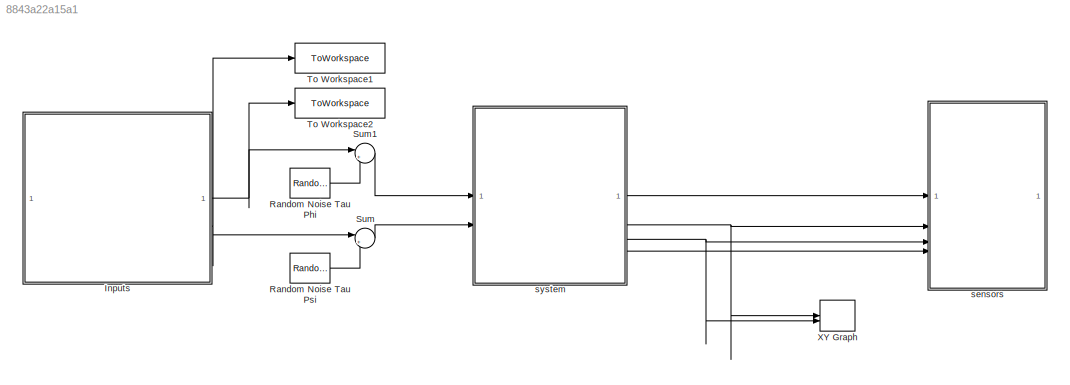
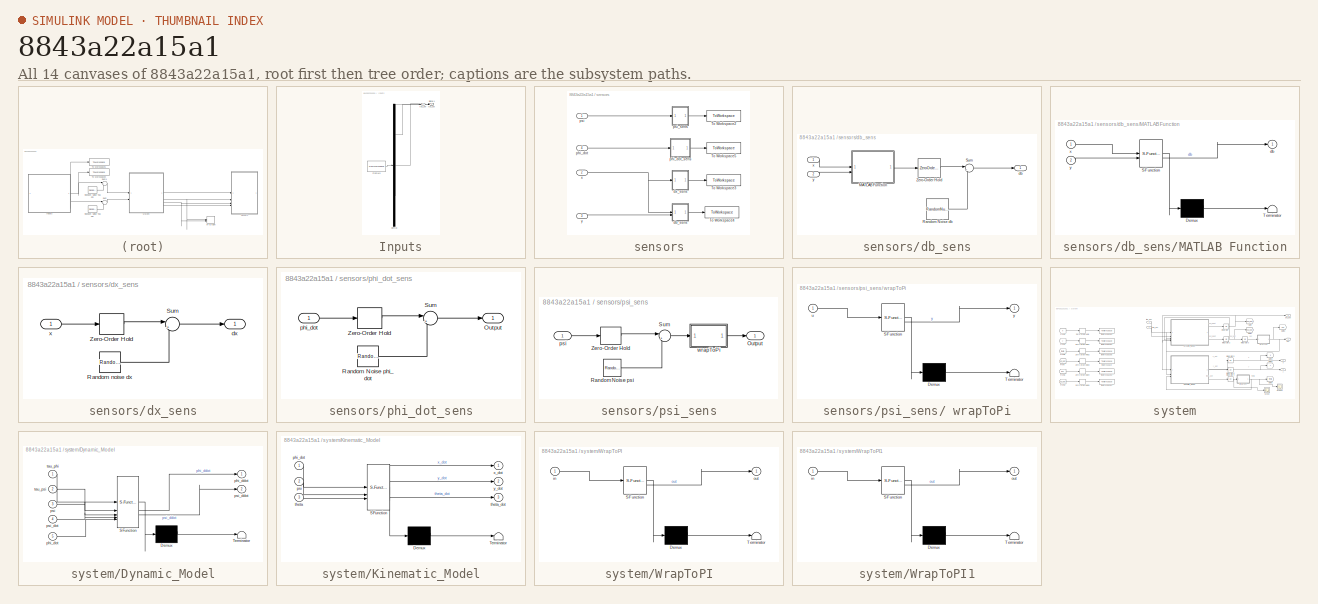
[diagram: thumbnail index - all 14 canvases of the model, root first then tree order]
MODEL slx_8843a22a15a1
KIND model
CONFIG AbsTol = auto
CONFIG EnableMultiTasking = off
CONFIG FixedStep = auto
CONFIG MaxStep = auto
CONFIG MinStep = auto
CONFIG RelTol = 1e-3
CONFIG SampleTimeConstraint = Unconstrained
CONFIG SolverName = VariableStepAuto
CONFIG StartTime = 0.0
CONFIG StopTime = 40
BLOCK [SubSystem] Inputs
  ClipboardFcn = sigbuilder_block('clipboard');
  CloseFcn = sigbuilder_block('close');
  ContinueFcn = sigbuilder_block('continue');
  CopyFcn = sigbuilder_block('copy');
  DeleteFcn = sigbuilder_block('delete');
  LoadFcn = sigbuilder_block('load');
  MaskHideContents = on
  ModelCloseFcn = sigbuilder_block('modelClose');
  NameChangeFcn = sigbuilder_block('namechange');
  OpenFcn = sigbuilder_block('open',[5.4 30 1141.2 522.6 ]);
  PauseFcn = sigbuilder_block('pause');
  PreSaveFcn = sigbuilder_block('preSave');
  StartFcn = sigbuilder_block('start');
  StopFcn = sigbuilder_block('stop');
  Tag = STV Subsys
BLOCK [Demux] Inputs/Demux
  DisplayOption = none
  Outputs = 3
  Tag = STV Demux
BLOCK [FromWorkspace] Inputs/FromWs
  Tag = STV FromWs
  VariableName = tuvar
BLOCK [Outport] Inputs/Signal 1
  Port = 3
  Tag = STV Outport
BLOCK [Outport] Inputs/tau_phi
  Tag = STV Outport
BLOCK [Outport] Inputs/tau_psi
  Port = 2
  Tag = STV Outport
BLOCK [RandomNumber] Random Noise Tau Phi
  NameLocation = left
  SampleTime = dt
  Variance = (std_dev_tau_phi)^2
BLOCK [RandomNumber] Random Noise Tau Psi
  NameLocation = left
  SampleTime = dt
  Variance = (std_dev_tau_psi)^2
BLOCK [Sum] Sum
  Inputs = |++
BLOCK [Sum] Sum1
  Inputs = |++
BLOCK [ToWorkspace] To Workspace1
  FixptAsFi = on
  MaxDataPoints = inf
  SampleTime = dt
  VariableName = tau_psi
BLOCK [ToWorkspace] To Workspace2
  FixptAsFi = on
  MaxDataPoints = inf
  SampleTime = dt
  VariableName = tau_phi
BLOCK [Record] XY Graph
  CompatibilityTag = XY
  FileSettingsInternal = {"entries":[{"content":{"excelSettings":{"content":{},"type":"Streamout.ExcelSettings"}},"type":"Streamout.FileSettingStorage","uuid":"0d63fc68-16b3-43fa-ba44-93525267de72"}],"packageUris":["http://schema.mathworks.com/mf0/streamout_blocks/R2020a"],"version":"1.0"}
  Layout = [1 1]
  SignalsInternal = {"entries":[{"content":{"signals":[{"content":{"blockPath":["modello_simulink/XY Graph"],"channel":[],"dimensions":[1],"domain":"modello_simulink/XY Graph","lineColor":"#a2142f","plots":[1],"port":1,"sid":[""],"signalID":850,"signalName":"system:2"},"type":"RecordBlkView.Signal","uuid":"45d43a40-0071-48a4-adb9-438d29db47b0"},{"content":{"blockPath":["modello_simulink/XY Graph"],"channel":[],"dimen...<+395ch>
  VisualizationBindings = {"xyplotplugin":{"info":[{"series":[{"bindingParametersList":[{"parameter":"X-Axis","signalID":850,"signalName":"system:2"},{"parameter":"Y-Axis","signalID":854,"signalName":"system:3"}],"seriesID":3851}],"subplotID":1}]}}
BLOCK [SubSystem] sensors
BLOCK [ToWorkspace] sensors/To Workspace2
  FixptAsFi = on
  MaxDataPoints = inf
  SampleTime = dt_psi
  SaveFormat = Timeseries
  VariableName = psi_sens
BLOCK [ToWorkspace] sensors/To Workspace3
  FixptAsFi = on
  MaxDataPoints = inf
  SampleTime = dt_dx
  SaveFormat = Timeseries
  VariableName = dx
BLOCK [ToWorkspace] sensors/To Workspace4
  FixptAsFi = on
  MaxDataPoints = inf
  SampleTime = dt_db
  SaveFormat = Timeseries
  VariableName = db
BLOCK [ToWorkspace] sensors/To Workspace5
  FixptAsFi = on
  MaxDataPoints = inf
  SampleTime = dt_phi_dot
  SaveFormat = Timeseries
  VariableName = phi_dot_sens
BLOCK [SubSystem] sensors/db_sens
BLOCK [SubSystem] sensors/db_sens/MATLAB Function
  ErrorFcn = Stateflow.Translate.translate
  LibrarySourceBlock = simulink/User-Defined\nFunctions/MATLAB Function
  PermitHierarchicalResolution = ExplicitOnly
  SFBlockType = MATLAB Function
  TreatAsAtomicUnit = on
BLOCK [Demux] sensors/db_sens/MATLAB Function/ Demux 
  Outputs = 1
BLOCK [S-Function] sensors/db_sens/MATLAB Function/ SFunction 
  EnableBusSupport = on
  FunctionName = sf_sfun
  Parameters = D
  PortCounts = [2 2]
  SFcnIsStateOwnerBlock = off
  SFunctionDeploymentMode = off
  Tag = Stateflow S-Function 6
BLOCK [Terminator] sensors/db_sens/MATLAB Function/ Terminator 
BLOCK [Outport] sensors/db_sens/MATLAB Function/db
BLOCK [Inport] sensors/db_sens/MATLAB Function/x
BLOCK [Inport] sensors/db_sens/MATLAB Function/y
  Port = 2
BLOCK [RandomNumber] sensors/db_sens/Random Noise db
  SampleTime = dt_db
  Variance = (std_dev_db)^2
BLOCK [Sum] sensors/db_sens/Sum
  Inputs = |++
BLOCK [ZeroOrderHold] sensors/db_sens/Zero-Order Hold
  SampleTime = dt_db
BLOCK [Outport] sensors/db_sens/db
BLOCK [Inport] sensors/db_sens/x
BLOCK [Inport] sensors/db_sens/y
  Port = 2
BLOCK [SubSystem] sensors/dx_sens
BLOCK [RandomNumber] sensors/dx_sens/Random noise dx
  SampleTime = dt_dx
  Variance = (std_dev_dx)^2
BLOCK [Sum] sensors/dx_sens/Sum
  Inputs = |++
BLOCK [ZeroOrderHold] sensors/dx_sens/Zero-Order Hold
  SampleTime = dt_dx
BLOCK [Outport] sensors/dx_sens/dx
BLOCK [Inport] sensors/dx_sens/x
BLOCK [Inport] sensors/phi_dot
  Port = 4
BLOCK [SubSystem] sensors/phi_dot_sens
BLOCK [Outport] sensors/phi_dot_sens/Output
BLOCK [RandomNumber] sensors/phi_dot_sens/Random Noise phi_dot
  SampleTime = dt_phi_dot
  Variance = (std_dev_phi_dot)^2
BLOCK [Sum] sensors/phi_dot_sens/Sum
  Inputs = |++
BLOCK [ZeroOrderHold] sensors/phi_dot_sens/Zero-Order Hold
  SampleTime = dt_phi_dot
BLOCK [Inport] sensors/phi_dot_sens/phi_dot
BLOCK [Inport] sensors/psi
BLOCK [SubSystem] sensors/psi_sens
BLOCK [SubSystem] sensors/psi_sens/ wrapToPi
  ErrorFcn = Stateflow.Translate.translate
  LibrarySourceBlock = simulink/User-Defined\nFunctions/MATLAB Function
  PermitHierarchicalResolution = ExplicitOnly
  SFBlockType = MATLAB Function
  TreatAsAtomicUnit = on
BLOCK [Demux] sensors/psi_sens/ wrapToPi/ Demux 
  Outputs = 1
BLOCK [S-Function] sensors/psi_sens/ wrapToPi/ SFunction 
  EnableBusSupport = on
  FunctionName = sf_sfun
  PortCounts = [1 2]
  SFcnIsStateOwnerBlock = off
  SFunctionDeploymentMode = off
  Tag = Stateflow S-Function 5
BLOCK [Terminator] sensors/psi_sens/ wrapToPi/ Terminator 
BLOCK [Inport] sensors/psi_sens/ wrapToPi/u
BLOCK [Outport] sensors/psi_sens/ wrapToPi/y
BLOCK [Outport] sensors/psi_sens/Output
BLOCK [RandomNumber] sensors/psi_sens/Random Noise psi
  SampleTime = dt_psi
  Variance = (std_dev_psi)^2
BLOCK [Sum] sensors/psi_sens/Sum
  Inputs = |++
BLOCK [ZeroOrderHold] sensors/psi_sens/Zero-Order Hold
  SampleTime = dt_psi
BLOCK [Inport] sensors/psi_sens/psi
BLOCK [Inport] sensors/x
  Port = 2
BLOCK [Inport] sensors/y
  Port = 3
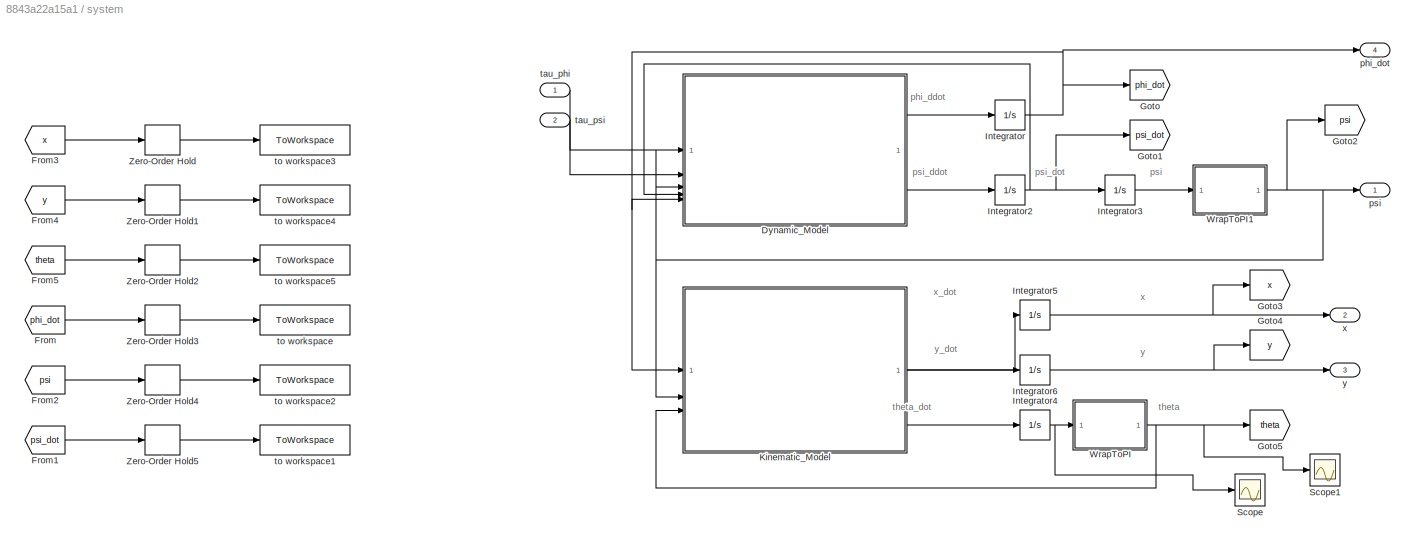
BLOCK [SubSystem] system
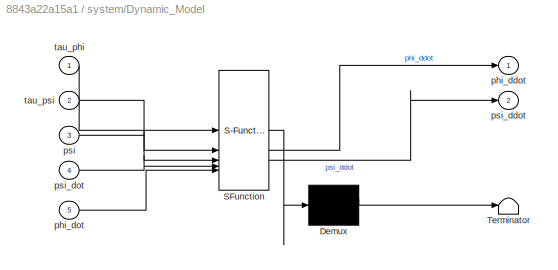
BLOCK [SubSystem] system/Dynamic_Model
  ErrorFcn = Stateflow.Translate.translate
  LibrarySourceBlock = simulink/User-Defined\nFunctions/MATLAB Function
  PermitHierarchicalResolution = ExplicitOnly
  SFBlockType = MATLAB Function
  TreatAsAtomicUnit = on
BLOCK [Demux] system/Dynamic_Model/ Demux 
  Outputs = 1
BLOCK [S-Function] system/Dynamic_Model/ SFunction 
  EnableBusSupport = on
  FunctionName = sf_sfun
  Parameters = IPy,IPz,L,a,b,rp
  PortCounts = [5 3]
  SFcnIsStateOwnerBlock = off
  SFunctionDeploymentMode = off
  Tag = Stateflow S-Function 1
BLOCK [Terminator] system/Dynamic_Model/ Terminator 
BLOCK [Outport] system/Dynamic_Model/phi_ddot
BLOCK [Inport] system/Dynamic_Model/phi_dot
  Port = 5
BLOCK [Inport] system/Dynamic_Model/psi
  Port = 3
BLOCK [Outport] system/Dynamic_Model/psi_ddot
  Port = 2
BLOCK [Inport] system/Dynamic_Model/psi_dot
  Port = 4
BLOCK [Inport] system/Dynamic_Model/tau_phi
BLOCK [Inport] system/Dynamic_Model/tau_psi
  Port = 2
BLOCK [From] system/From
  GotoTag = phi_dot
BLOCK [From] system/From1
  GotoTag = psi_dot
BLOCK [From] system/From2
  GotoTag = psi
BLOCK [From] system/From3
  GotoTag = x
BLOCK [From] system/From4
  GotoTag = y
BLOCK [From] system/From5
  GotoTag = theta
BLOCK [Goto] system/Goto
  GotoTag = phi_dot
BLOCK [Goto] system/Goto1
  GotoTag = psi_dot
BLOCK [Goto] system/Goto2
  GotoTag = psi
BLOCK [Goto] system/Goto3
  GotoTag = x
BLOCK [Goto] system/Goto4
  GotoTag = y
BLOCK [Goto] system/Goto5
  GotoTag = theta
BLOCK [Integrator] system/Integrator
  InitialCondition = X_start(4)
BLOCK [Integrator] system/Integrator2
  InitialCondition = X_start(6)
BLOCK [Integrator] system/Integrator3
  InitialCondition = X_start(5)
BLOCK [Integrator] system/Integrator4
  InitialCondition = X_start(3)
BLOCK [Integrator] system/Integrator5
  InitialCondition = X_start(1)
BLOCK [Integrator] system/Integrator6
  InitialCondition = X_start(2)
BLOCK [SubSystem] system/Kinematic_Model
  ErrorFcn = Stateflow.Translate.translate
  LibrarySourceBlock = simulink/User-Defined\nFunctions/MATLAB Function
  PermitHierarchicalResolution = ExplicitOnly
  SFBlockType = MATLAB Function
  TreatAsAtomicUnit = on
BLOCK [Demux] system/Kinematic_Model/ Demux 
  Outputs = 1
BLOCK [S-Function] system/Kinematic_Model/ SFunction 
  EnableBusSupport = on
  FunctionName = sf_sfun
  Parameters = L,rp
  PortCounts = [3 4]
  SFcnIsStateOwnerBlock = off
  SFunctionDeploymentMode = off
  Tag = Stateflow S-Function 2
BLOCK [Terminator] system/Kinematic_Model/ Terminator 
BLOCK [Inport] system/Kinematic_Model/phi_dot
BLOCK [Inport] system/Kinematic_Model/psi
  Port = 2
BLOCK [Inport] system/Kinematic_Model/theta
  Port = 3
BLOCK [Outport] system/Kinematic_Model/theta_dot
  Port = 3
BLOCK [Outport] system/Kinematic_Model/x_dot
BLOCK [Outport] system/Kinematic_Model/y_dot
  Port = 2
BLOCK [Scope] system/Scope
  Floating = off
  NumInputPorts = 1
  ScopeSpecificationString = Simulink.scopes.TimeScopeBlockCfg('CurrentConfiguration', extmgr.ConfigurationSet(extmgr.Configuration('Core','General UI',true),extmgr.Configuration('Core','Source UI',true),extmgr.Configuration('Sources','WiredSimulink',true),extmgr.Configuration('Visuals','Time Domain',true,'SerializedDisplays',{struct('MinYLimReal','-1.3404','MaxYLimReal','5.43605','YLabelReal','','MinYLimMag','0.00000','MaxYL...<+1358ch>
BLOCK [Scope] system/Scope1
  Floating = off
  NumInputPorts = 1
  ScopeSpecificationString = Simulink.scopes.TimeScopeBlockCfg('CurrentConfiguration', extmgr.ConfigurationSet(extmgr.Configuration('Core','General UI',true),extmgr.Configuration('Core','Source UI',true),extmgr.Configuration('Sources','WiredSimulink',true,'DataLoggingVariableName','ScopeData1'),extmgr.Configuration('Visuals','Time Domain',true,'SerializedDisplays',{struct('MinYLimReal','-0.78404','MaxYLimReal','7.06834','YLab...<+1396ch>
BLOCK [SubSystem] system/WrapToPI
  ErrorFcn = Stateflow.Translate.translate
  LibrarySourceBlock = simulink/User-Defined\nFunctions/MATLAB Function
  PermitHierarchicalResolution = ExplicitOnly
  SFBlockType = MATLAB Function
  TreatAsAtomicUnit = on
BLOCK [Demux] system/WrapToPI/ Demux 
  Outputs = 1
BLOCK [S-Function] system/WrapToPI/ SFunction 
  EnableBusSupport = on
  FunctionName = sf_sfun
  PortCounts = [1 2]
  SFcnIsStateOwnerBlock = off
  SFunctionDeploymentMode = off
  Tag = Stateflow S-Function 3
BLOCK [Terminator] system/WrapToPI/ Terminator 
BLOCK [Inport] system/WrapToPI/in
BLOCK [Outport] system/WrapToPI/out
BLOCK [SubSystem] system/WrapToPI1
  ErrorFcn = Stateflow.Translate.translate
  LibrarySourceBlock = simulink/User-Defined\nFunctions/MATLAB Function
  PermitHierarchicalResolution = ExplicitOnly
  SFBlockType = MATLAB Function
  TreatAsAtomicUnit = on
BLOCK [Demux] system/WrapToPI1/ Demux 
  Outputs = 1
BLOCK [S-Function] system/WrapToPI1/ SFunction 
  EnableBusSupport = on
  FunctionName = sf_sfun
  PortCounts = [1 2]
  SFcnIsStateOwnerBlock = off
  SFunctionDeploymentMode = off
  Tag = Stateflow S-Function 4
BLOCK [Terminator] system/WrapToPI1/ Terminator 
BLOCK [Inport] system/WrapToPI1/in
BLOCK [Outport] system/WrapToPI1/out
BLOCK [ZeroOrderHold] system/Zero-Order Hold
  SampleTime = dt
BLOCK [ZeroOrderHold] system/Zero-Order Hold1
  SampleTime = dt
BLOCK [ZeroOrderHold] system/Zero-Order Hold2
  SampleTime = dt
BLOCK [ZeroOrderHold] system/Zero-Order Hold3
  SampleTime = dt
BLOCK [ZeroOrderHold] system/Zero-Order Hold4
  SampleTime = dt
BLOCK [ZeroOrderHold] system/Zero-Order Hold5
  SampleTime = dt
BLOCK [Outport] system/phi_dot
  Port = 4
BLOCK [Outport] system/psi
BLOCK [Inport] system/tau_phi
BLOCK [Inport] system/tau_psi
  Port = 2
BLOCK [ToWorkspace] system/to workspace
  FixptAsFi = on
  MaxDataPoints = inf
  SampleTime = dt
  VariableName = phi_dot
BLOCK [ToWorkspace] system/to workspace1
  FixptAsFi = on
  MaxDataPoints = inf
  SampleTime = dt
  VariableName = psi_dot
BLOCK [ToWorkspace] system/to workspace2
  FixptAsFi = on
  MaxDataPoints = inf
  SampleTime = dt
  VariableName = psi
BLOCK [ToWorkspace] system/to workspace3
  FixptAsFi = on
  MaxDataPoints = inf
  SampleTime = dt
  VariableName = x
BLOCK [ToWorkspace] system/to workspace4
  FixptAsFi = on
  MaxDataPoints = inf
  SampleTime = dt
  VariableName = y
BLOCK [ToWorkspace] system/to workspace5
  FixptAsFi = on
  MaxDataPoints = inf
  SampleTime = dt
  VariableName = theta
BLOCK [Outport] system/x
  Port = 2
BLOCK [Outport] system/y
  Port = 3
ANNOTATION system: phi_ddot
ANNOTATION system: psi
ANNOTATION system: psi_ddot
ANNOTATION system: psi_dot
ANNOTATION system: theta
ANNOTATION system: theta_dot
ANNOTATION system: x
ANNOTATION system: x_dot
ANNOTATION system: y
ANNOTATION system: y_dot
NET Inputs:1 -> Sum1:1, To Workspace2:1
NET Inputs:2 -> Sum:1, To Workspace1:1
LINE Random Noise Tau Phi:1 -> Sum1:2
LINE Random Noise Tau Psi:1 -> Sum:2
LINE Sum1:1 -> system:1
LINE Sum:1 -> system:2
LINE sensors/db_sens/MATLAB Function:1 -> sensors/db_sens/Zero-Order Hold:1
LINE sensors/db_sens/Random Noise db:1 -> sensors/db_sens/Sum:2
LINE sensors/db_sens/Sum:1 -> sensors/db_sens/db:1
LINE sensors/db_sens/Zero-Order Hold:1 -> sensors/db_sens/Sum:1
LINE sensors/db_sens/x:1 -> sensors/db_sens/MATLAB Function:1
LINE sensors/db_sens/y:1 -> sensors/db_sens/MATLAB Function:2
LINE sensors/db_sens:1 -> sensors/To Workspace4:1
LINE sensors/dx_sens/Random noise dx:1 -> sensors/dx_sens/Sum:2
LINE sensors/dx_sens/Sum:1 -> sensors/dx_sens/dx:1
LINE sensors/dx_sens/Zero-Order Hold:1 -> sensors/dx_sens/Sum:1
LINE sensors/dx_sens/x:1 -> sensors/dx_sens/Zero-Order Hold:1
LINE sensors/dx_sens:1 -> sensors/To Workspace3:1
LINE sensors/phi_dot:1 -> sensors/phi_dot_sens:1
LINE sensors/phi_dot_sens/Random Noise phi_dot:1 -> sensors/phi_dot_sens/Sum:2
LINE sensors/phi_dot_sens/Sum:1 -> sensors/phi_dot_sens/Output:1
LINE sensors/phi_dot_sens/Zero-Order Hold:1 -> sensors/phi_dot_sens/Sum:1
LINE sensors/phi_dot_sens/phi_dot:1 -> sensors/phi_dot_sens/Zero-Order Hold:1
LINE sensors/phi_dot_sens:1 -> sensors/To Workspace5:1
LINE sensors/psi:1 -> sensors/psi_sens:1
LINE sensors/psi_sens/ wrapToPi:1 -> sensors/psi_sens/Output:1
LINE sensors/psi_sens/Random Noise psi:1 -> sensors/psi_sens/Sum:2
LINE sensors/psi_sens/Sum:1 -> sensors/psi_sens/ wrapToPi:1
LINE sensors/psi_sens/Zero-Order Hold:1 -> sensors/psi_sens/Sum:1
LINE sensors/psi_sens/psi:1 -> sensors/psi_sens/Zero-Order Hold:1
LINE sensors/psi_sens:1 -> sensors/To Workspace2:1
NET sensors/x:1 -> sensors/db_sens:1, sensors/dx_sens:1
LINE sensors/y:1 -> sensors/db_sens:2
LINE system/Dynamic_Model:1 -> system/Integrator:1
LINE system/Dynamic_Model:2 -> system/Integrator2:1
LINE system/From1:1 -> system/Zero-Order Hold5:1
LINE system/From2:1 -> system/Zero-Order Hold4:1
LINE system/From3:1 -> system/Zero-Order Hold:1
LINE system/From4:1 -> system/Zero-Order Hold1:1
LINE system/From5:1 -> system/Zero-Order Hold2:1
LINE system/From:1 -> system/Zero-Order Hold3:1
NET system/Integrator2:1 -> system/Dynamic_Model:4, system/Goto1:1, system/Integrator3:1
LINE system/Integrator3:1 -> system/WrapToPI1:1
NET system/Integrator4:1 -> system/Scope:1, system/WrapToPI:1
NET system/Integrator5:1 -> system/Goto3:1, system/x:1
NET system/Integrator6:1 -> system/Goto4:1, system/y:1
NET system/Integrator:1 -> system/Dynamic_Model:5, system/Goto:1, system/Kinematic_Model:1, system/phi_dot:1
LINE system/Kinematic_Model:1 -> system/Integrator5:1
LINE system/Kinematic_Model:2 -> system/Integrator6:1
LINE system/Kinematic_Model:3 -> system/Integrator4:1
NET system/WrapToPI1:1 -> system/Dynamic_Model:3, system/Goto2:1, system/Kinematic_Model:2, system/psi:1
NET system/WrapToPI:1 -> system/Goto5:1, system/Kinematic_Model:3, system/Scope1:1
LINE system/Zero-Order Hold1:1 -> system/to workspace4:1
LINE system/Zero-Order Hold2:1 -> system/to workspace5:1
LINE system/Zero-Order Hold3:1 -> system/to workspace:1
LINE system/Zero-Order Hold4:1 -> system/to workspace2:1
LINE system/Zero-Order Hold5:1 -> system/to workspace1:1
LINE system/Zero-Order Hold:1 -> system/to workspace3:1
LINE system/tau_phi:1 -> system/Dynamic_Model:1
LINE system/tau_psi:1 -> system/Dynamic_Model:2
LINE system:1 -> sensors:1
NET system:2 -> XY Graph:1, sensors:2
NET system:3 -> XY Graph:2, sensors:3
LINE system:4 -> sensors:4
note: NET lines group one-source signal fan-out (src -> all destinations, sorted); 1:1 wires keep LINE
CHART system/Dynamic_Model states=1 transitions=1
  STATE_LABEL 'eML_blk_kernel()'
  STATE_LABEL 'SCRIPT:\nfunction [phi_ddot,psi_ddot] = DynamicModel(tau_phi,tau_psi,psi,psi_dot,phi_dot,IPz, IPy, L, rp, b, a)\n    B = [a*rp^2*cos(psi)^2+b*(rp/L)^2*sin(psi)^2+IPy, -IPz*(rp/L)*sin(psi)\n        -IPz*(rp/L)*sin(psi), IPz];\n    \n    C = [(rp^2*b/L^2-a*rp^2)*cos(psi)*sin(psi)*psi_dot*phi_dot;\n            -IPz*rp/L*cos(psi)*psi_dot*phi_dot];\n\n    tau = [tau_phi;\n            tau_psi];\n\n    q_ddot = inv...<+74ch>'
CHART system/Kinematic_Model states=1 transitions=1
  STATE_LABEL 'eML_blk_kernel()'
  STATE_LABEL 'SCRIPT:\nfunction [x_dot,y_dot,theta_dot] = KinematicModel(phi_dot,psi,theta,rp, L)\n    x_dot = rp * phi_dot * cos(theta) * cos(psi);\n    y_dot = rp * phi_dot * sin(theta) * cos(psi);\n    theta_dot = - (rp * phi_dot * sin(psi)) / L;\n'
CHART system/WrapToPI states=1 transitions=1
  STATE_LABEL 'eML_blk_kernel()'
  STATE_LABEL 'SCRIPT:\nfunction out = wrapper(in)\n    out = wrapTo2Pi(in);\n'
CHART system/WrapToPI1 states=1 transitions=1
  STATE_LABEL 'eML_blk_kernel()'
  STATE_LABEL 'SCRIPT:\nfunction out = wrapper(in)\n    out = wrapToPi(in);\n'
CHART sensors/psi_sens/ wrapToPi states=1 transitions=1
  STATE_LABEL 'eML_blk_kernel()'
  STATE_LABEL 'SCRIPT:\nfunction y = fcn(u)\n    y = wrapToPi(u);\n'
CHART sensors/db_sens/MATLAB Function states=1 transitions=1
  STATE_LABEL 'eML_blk_kernel()'
  STATE_LABEL 'SCRIPT:\nfunction db = calculate_db(x,y,D)\ndb = sqrt(y^2+(D-x)^2);\n'
CHART  states=0 transitions=0
CHART  states=0 transitions=0
CHART  states=0 transitions=0
CHART  states=0 transitions=0
CHART  states=0 transitions=0
CHART  states=0 transitions=0
